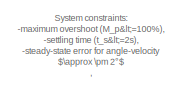
[diagram: root canvas - part 1/2, top left region]
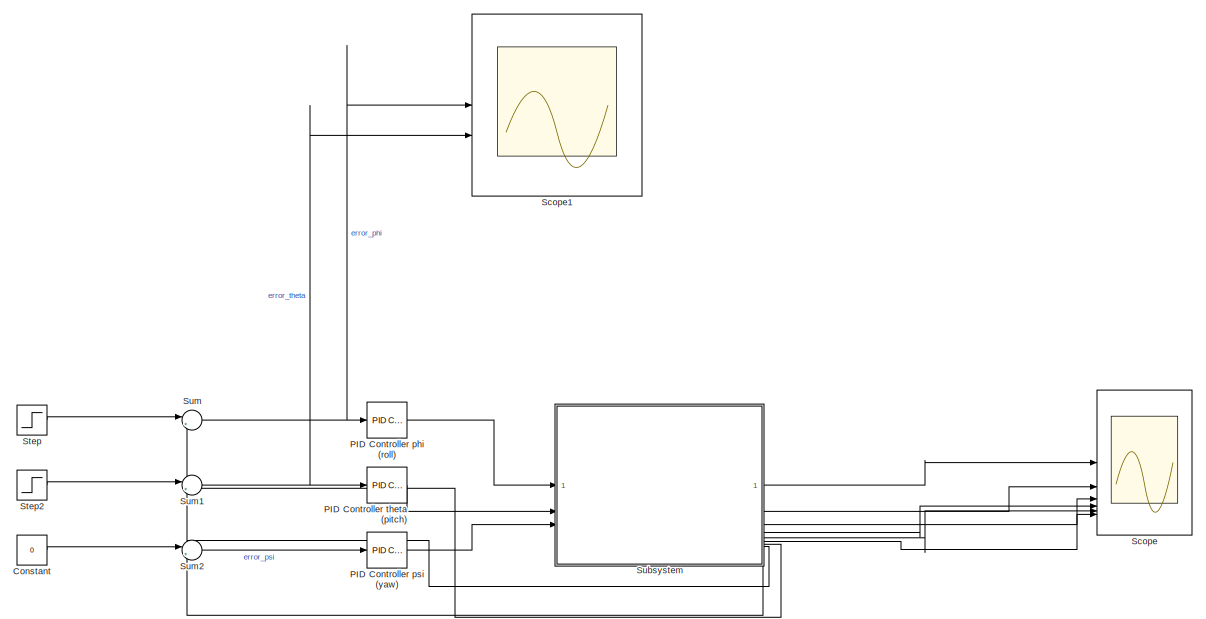
[diagram: root canvas - part 2/2, most of the canvas]
MODEL slx_ce5c52f9cf10
KIND model
CONFIG AbsTol = auto
CONFIG EnableMultiTasking = off
CONFIG FixedStep = auto
CONFIG MaxStep = auto
CONFIG MinStep = auto
CONFIG RelTol = 1e-3
CONFIG SampleTimeConstraint = Unconstrained
CONFIG SolverName = VariableStepAuto
CONFIG StartTime = 0.0
CONFIG StopTime = 50
BLOCK [Constant] Constant
  Value = 0
BLOCK [Reference] PID Controller phi (roll)  REF=slpidlib/PID Controller
  LibrarySourceBlock = simulink/Continuous/PID Controller
  SourceBlock = slpidlib/PID Controller
  SourceType = PID 1dof
BLOCK [Reference] PID Controller psi (yaw)  REF=slpidlib/PID Controller
  LibrarySourceBlock = simulink/Continuous/PID Controller
  SourceBlock = slpidlib/PID Controller
  SourceType = PID 1dof
BLOCK [Reference] PID Controller theta (pitch)  REF=slpidlib/PID Controller
  LibrarySourceBlock = simulink/Continuous/PID Controller
  SourceBlock = slpidlib/PID Controller
  SourceType = PID 1dof
BLOCK [Scope] Scope
  Floating = off
  NumInputPorts = 6
  ScopeSpecificationString = Simulink.scopes.TimeScopeBlockCfg('CurrentConfiguration', extmgr.ConfigurationSet(extmgr.Configuration('Core','General UI',true),extmgr.Configuration('Core','Source UI',true),extmgr.Configuration('Sources','WiredSimulink',true),extmgr.Configuration('Visuals','Time Domain',true,'SerializedDisplays',{struct('MinYLimReal','-60924.85407','MaxYLimReal','7204.32213','YLabelReal','','MinYLimMag','   0.00...<+1547ch>
BLOCK [Scope] Scope1
  Floating = off
  NumInputPorts = 3
  ScopeSpecificationString = Simulink.scopes.TimeScopeBlockCfg('CurrentConfiguration', extmgr.ConfigurationSet(extmgr.Configuration('Core','General UI',true),extmgr.Configuration('Core','Source UI',true),extmgr.Configuration('Sources','WiredSimulink',true,'DataLoggingVariableName','ScopeData1'),extmgr.Configuration('Visuals','Time Domain',true,'SerializedDisplays',{struct('MinYLimReal','-26.24369','MaxYLimReal','13.03313','YL...<+1589ch>
BLOCK [Step] Step
  After = 0
  Before = 30
  SampleTime = 0
  Time = 10
BLOCK [Step] Step2
  After = 0
  Before = 20
  SampleTime = 0
  Time = 10
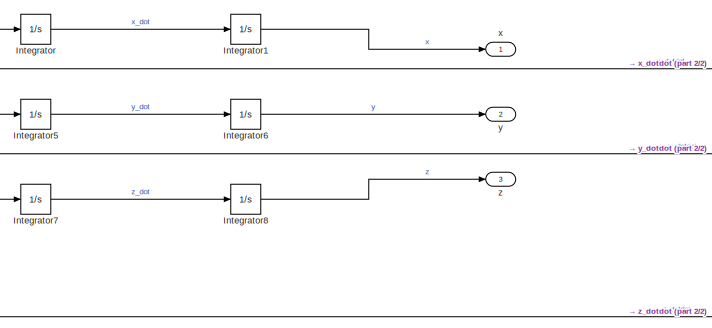
[diagram: Subsystem - part 1/2, top center region]
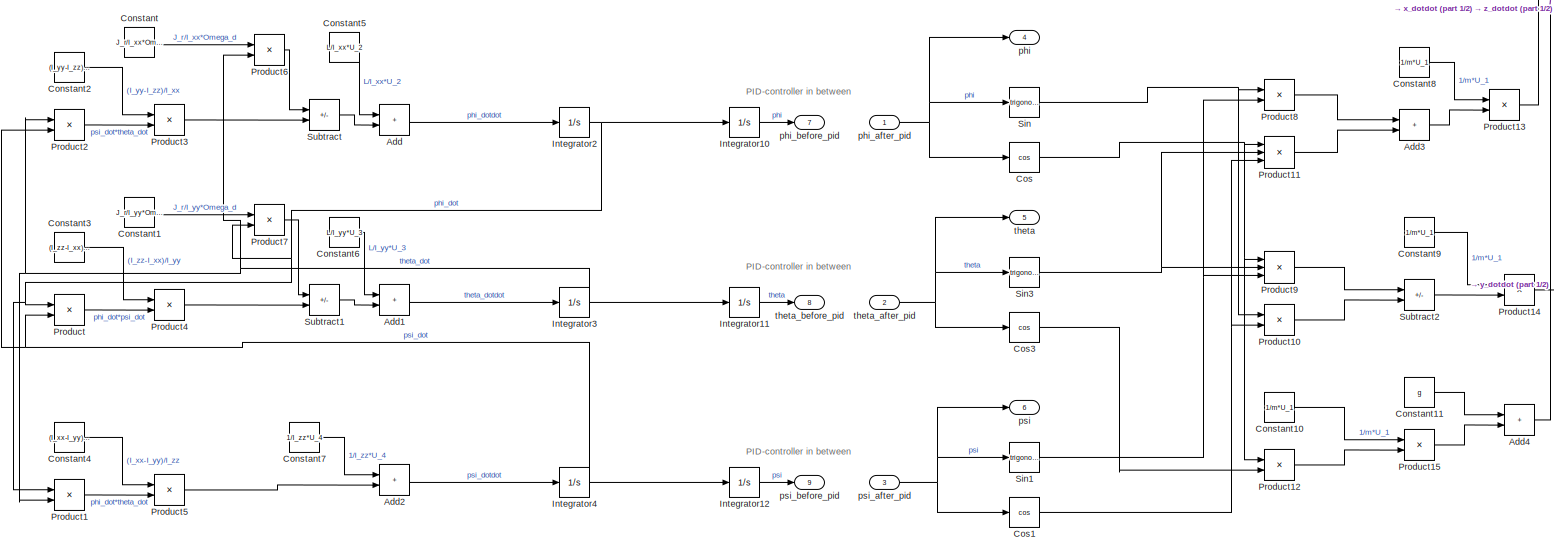
[diagram: Subsystem - part 2/2, full width, bottom band]
BLOCK [SubSystem] Subsystem
BLOCK [Sum] Subsystem/Add
  IconShape = rectangular
BLOCK [Sum] Subsystem/Add1
  IconShape = rectangular
BLOCK [Sum] Subsystem/Add2
  IconShape = rectangular
BLOCK [Sum] Subsystem/Add3
  IconShape = rectangular
BLOCK [Sum] Subsystem/Add4
  IconShape = rectangular
BLOCK [Constant] Subsystem/Constant
  Value = J_r/I_xx*Omega_d
BLOCK [Constant] Subsystem/Constant1
  Value = J_r/I_yy*Omega_d
BLOCK [Constant] Subsystem/Constant10
  Value = 1/m*U_1
BLOCK [Constant] Subsystem/Constant11
  Value = g
BLOCK [Constant] Subsystem/Constant2
  Value = (I_yy-I_zz)/I_xx
BLOCK [Constant] Subsystem/Constant3
  Value = (I_zz-I_xx)/I_yy
BLOCK [Constant] Subsystem/Constant4
  Value = (I_xx-I_yy)/I_zz
BLOCK [Constant] Subsystem/Constant5
  Value = L/I_xx*U_2
BLOCK [Constant] Subsystem/Constant6
  Value = L/I_yy*U_3
BLOCK [Constant] Subsystem/Constant7
  Value = 1/I_zz*U_4
BLOCK [Constant] Subsystem/Constant8
  Value = 1/m*U_1
BLOCK [Constant] Subsystem/Constant9
  Value = 1/m*U_1
BLOCK [Trigonometry] Subsystem/Cos
  Operator = cos
BLOCK [Trigonometry] Subsystem/Cos1
  Operator = cos
BLOCK [Trigonometry] Subsystem/Cos3
  Operator = cos
BLOCK [Integrator] Subsystem/Integrator
BLOCK [Integrator] Subsystem/Integrator1
BLOCK [Integrator] Subsystem/Integrator10
  InitialCondition = 30
BLOCK [Integrator] Subsystem/Integrator11
  InitialCondition = 20
BLOCK [Integrator] Subsystem/Integrator12
BLOCK [Integrator] Subsystem/Integrator2
BLOCK [Integrator] Subsystem/Integrator3
BLOCK [Integrator] Subsystem/Integrator4
BLOCK [Integrator] Subsystem/Integrator5
BLOCK [Integrator] Subsystem/Integrator6
BLOCK [Integrator] Subsystem/Integrator7
BLOCK [Integrator] Subsystem/Integrator8
BLOCK [Product] Subsystem/Product
BLOCK [Product] Subsystem/Product1
BLOCK [Product] Subsystem/Product10
BLOCK [Product] Subsystem/Product11
  Inputs = 3
BLOCK [Product] Subsystem/Product12
BLOCK [Product] Subsystem/Product13
BLOCK [Product] Subsystem/Product14
BLOCK [Product] Subsystem/Product15
BLOCK [Product] Subsystem/Product2
BLOCK [Product] Subsystem/Product3
BLOCK [Product] Subsystem/Product4
BLOCK [Product] Subsystem/Product5
BLOCK [Product] Subsystem/Product6
BLOCK [Product] Subsystem/Product7
BLOCK [Product] Subsystem/Product8
BLOCK [Product] Subsystem/Product9
  Inputs = 3
BLOCK [Trigonometry] Subsystem/Sin
BLOCK [Trigonometry] Subsystem/Sin1
BLOCK [Trigonometry] Subsystem/Sin3
BLOCK [Sum] Subsystem/Subtract
  IconShape = rectangular
  Inputs = -+
BLOCK [Sum] Subsystem/Subtract1
  IconShape = rectangular
  Inputs = -+
BLOCK [Sum] Subsystem/Subtract2
  IconShape = rectangular
  Inputs = +-
BLOCK [Outport] Subsystem/phi
  Port = 4
BLOCK [Inport] Subsystem/phi_after_pid
BLOCK [Outport] Subsystem/phi_before_pid
  Port = 7
BLOCK [Outport] Subsystem/psi
  Port = 6
BLOCK [Inport] Subsystem/psi_after_pid
  Port = 3
BLOCK [Outport] Subsystem/psi_before_pid
  Port = 9
BLOCK [Outport] Subsystem/theta
  Port = 5
BLOCK [Inport] Subsystem/theta_after_pid
  Port = 2
BLOCK [Outport] Subsystem/theta_before_pid
  Port = 8
BLOCK [Outport] Subsystem/x
BLOCK [Outport] Subsystem/y
  Port = 2
BLOCK [Outport] Subsystem/z
  Port = 3
BLOCK [Sum] Sum
  Inputs = |+-
BLOCK [Sum] Sum1
  Inputs = |+-
BLOCK [Sum] Sum2
  Inputs = |+-
ANNOTATION (root): System constraints: -maximum overshoot (M_p<=100%), -settling time (t_s<=2s), -steady-state error for angle-velocity $\approx \pm 2°$ , -Rise time = ? (<=0,1s)
ANNOTATION Subsystem: PID-controller in between
LINE Constant:1 -> Sum2:1
LINE PID Controller phi (roll):1 -> Subsystem:1
LINE PID Controller psi (yaw):1 -> Subsystem:3
LINE PID Controller theta (pitch):1 -> Subsystem:2
LINE Step2:1 -> Sum1:1
LINE Step:1 -> Sum:1
LINE Subsystem/Add1:1 -> Subsystem/Integrator3:1
LINE Subsystem/Add2:1 -> Subsystem/Integrator4:1
LINE Subsystem/Add3:1 -> Subsystem/Product13:2
LINE Subsystem/Add4:1 -> Subsystem/Integrator7:1
LINE Subsystem/Add:1 -> Subsystem/Integrator2:1
LINE Subsystem/Constant10:1 -> Subsystem/Product15:1
LINE Subsystem/Constant11:1 -> Subsystem/Add4:1
LINE Subsystem/Constant1:1 -> Subsystem/Product7:1
LINE Subsystem/Constant2:1 -> Subsystem/Product3:1
LINE Subsystem/Constant3:1 -> Subsystem/Product4:1
LINE Subsystem/Constant4:1 -> Subsystem/Product5:1
LINE Subsystem/Constant5:1 -> Subsystem/Add:1
LINE Subsystem/Constant6:1 -> Subsystem/Add1:1
LINE Subsystem/Constant7:1 -> Subsystem/Add2:1
LINE Subsystem/Constant8:1 -> Subsystem/Product13:1
LINE Subsystem/Constant9:1 -> Subsystem/Product14:1
LINE Subsystem/Constant:1 -> Subsystem/Product6:1
NET Subsystem/Cos1:1 -> Subsystem/Product10:2, Subsystem/Product11:3
LINE Subsystem/Cos3:1 -> Subsystem/Product12:2
NET Subsystem/Cos:1 -> Subsystem/Product11:1, Subsystem/Product12:1, Subsystem/Product9:1
LINE Subsystem/Integrator10:1 -> Subsystem/phi_before_pid:1
LINE Subsystem/Integrator11:1 -> Subsystem/theta_before_pid:1
LINE Subsystem/Integrator12:1 -> Subsystem/psi_before_pid:1
LINE Subsystem/Integrator1:1 -> Subsystem/x:1
NET Subsystem/Integrator2:1 -> Subsystem/Integrator10:1, Subsystem/Product1:1, Subsystem/Product7:2, Subsystem/Product:1
NET Subsystem/Integrator3:1 -> Subsystem/Integrator11:1, Subsystem/Product1:2, Subsystem/Product2:1, Subsystem/Product6:2
NET Subsystem/Integrator4:1 -> Subsystem/Integrator12:1, Subsystem/Product2:2, Subsystem/Product:2
LINE Subsystem/Integrator5:1 -> Subsystem/Integrator6:1
LINE Subsystem/Integrator6:1 -> Subsystem/y:1
LINE Subsystem/Integrator7:1 -> Subsystem/Integrator8:1
LINE Subsystem/Integrator8:1 -> Subsystem/z:1
LINE Subsystem/Integrator:1 -> Subsystem/Integrator1:1
LINE Subsystem/Product10:1 -> Subsystem/Subtract2:2
LINE Subsystem/Product11:1 -> Subsystem/Add3:2
LINE Subsystem/Product12:1 -> Subsystem/Product15:2
LINE Subsystem/Product13:1 -> Subsystem/Integrator:1
LINE Subsystem/Product14:1 -> Subsystem/Integrator5:1
LINE Subsystem/Product15:1 -> Subsystem/Add4:2
LINE Subsystem/Product1:1 -> Subsystem/Product5:2
LINE Subsystem/Product2:1 -> Subsystem/Product3:2
LINE Subsystem/Product3:1 -> Subsystem/Subtract:2
LINE Subsystem/Product4:1 -> Subsystem/Subtract1:2
LINE Subsystem/Product5:1 -> Subsystem/Add2:2
LINE Subsystem/Product6:1 -> Subsystem/Subtract:1
LINE Subsystem/Product7:1 -> Subsystem/Subtract1:1
LINE Subsystem/Product8:1 -> Subsystem/Add3:1
LINE Subsystem/Product9:1 -> Subsystem/Subtract2:1
LINE Subsystem/Product:1 -> Subsystem/Product4:2
NET Subsystem/Sin1:1 -> Subsystem/Product8:2, Subsystem/Product9:3
NET Subsystem/Sin3:1 -> Subsystem/Product11:2, Subsystem/Product9:2
NET Subsystem/Sin:1 -> Subsystem/Product10:1, Subsystem/Product8:1
LINE Subsystem/Subtract1:1 -> Subsystem/Add1:2
LINE Subsystem/Subtract2:1 -> Subsystem/Product14:2
LINE Subsystem/Subtract:1 -> Subsystem/Add:2
NET Subsystem/phi_after_pid:1 -> Subsystem/Cos:1, Subsystem/Sin:1, Subsystem/phi:1
NET Subsystem/psi_after_pid:1 -> Subsystem/Cos1:1, Subsystem/Sin1:1, Subsystem/psi:1
NET Subsystem/theta_after_pid:1 -> Subsystem/Cos3:1, Subsystem/Sin3:1, Subsystem/theta:1
LINE Subsystem:1 -> Scope:1
LINE Subsystem:2 -> Scope:2
LINE Subsystem:3 -> Scope:3
LINE Subsystem:4 -> Scope:4
LINE Subsystem:5 -> Scope:5
LINE Subsystem:6 -> Scope:6
LINE Subsystem:7 -> Sum:2
LINE Subsystem:8 -> Sum1:2
LINE Subsystem:9 -> Sum2:2
NET Sum1:1 -> PID Controller theta (pitch):1, Scope1:2
LINE Sum2:1 -> PID Controller psi (yaw):1
NET Sum:1 -> PID Controller phi (roll):1, Scope1:1
note: NET lines group one-source signal fan-out (src -> all destinations, sorted); 1:1 wires keep LINE
